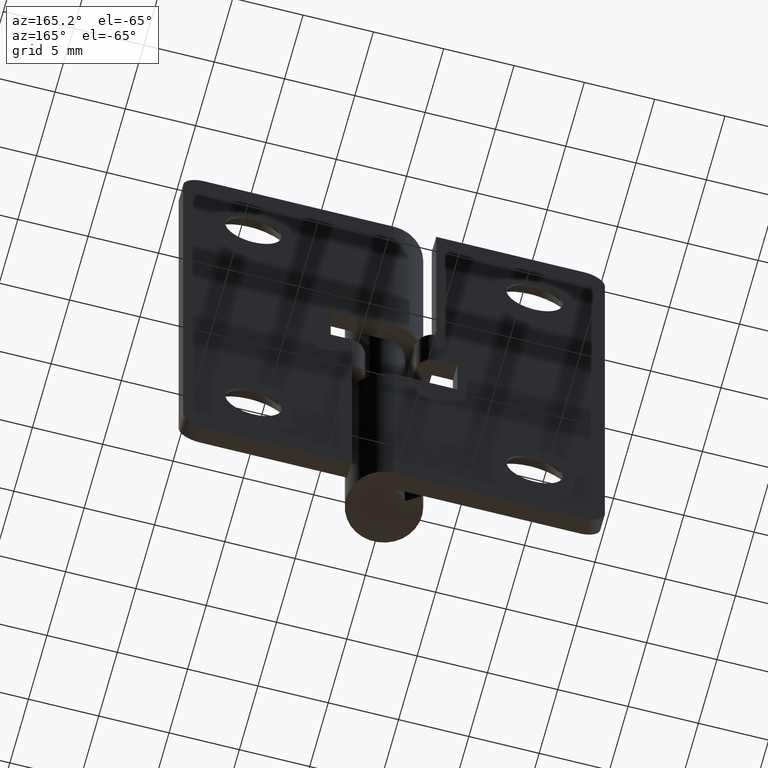
[diagram: clean part render]
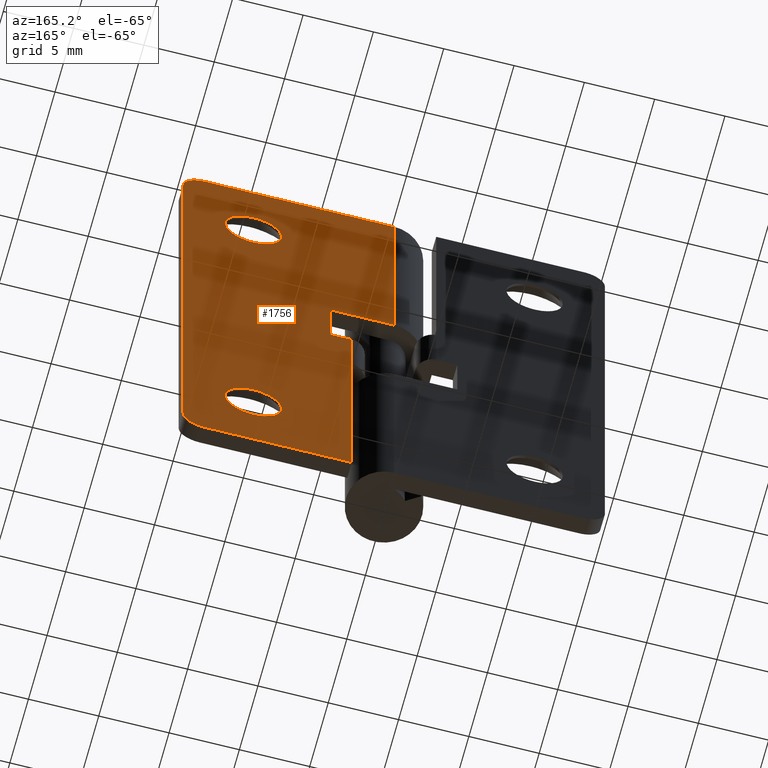
[diagram: same view with one face highlighted and labeled with its STEP entity id]
A machine part, auxiliary view. The second image highlights one B-rep face of the part: STEP entity #1756.
In plain terms, the highlighted face is a freeform B-spline surface patch.
Its self-contained STEP definition (entity closure, byte-faithful):
#472=CARTESIAN_POINT('',(11.986938377345840,2.699997000000000,33.771783587580430));
#473=VERTEX_POINT('',#472);
#479=CARTESIAN_POINT('',(10.0,2.699997000000000,31.999984999999999));
#480=VERTEX_POINT('',#479);
#481=CARTESIAN_POINT('',(11.986938377345840,2.699997000000000,33.771783587580430));
#482=CARTESIAN_POINT('',(11.783445861569737,2.699997000000001,31.999984999999999));
#483=CARTESIAN_POINT('',(10.0,2.699997000000000,31.999984999999999));
#491=(BOUNDED_CURVE()B_SPLINE_CURVE(2,(#481,#482,#483),.UNSPECIFIED.,.F.,.U.)B_SPLINE_CURVE_WITH_KNOTS((3,3),(0.269767770005125,0.500000000000000),.UNSPECIFIED.)CURVE()GEOMETRIC_REPRESENTATION_ITEM()RATIONAL_B_SPLINE_CURVE((0.957343708590814,0.730266164328808,1.0))REPRESENTATION_ITEM(''));
#492=EDGE_CURVE('',#473,#480,#491,.T.);
#494=CARTESIAN_POINT('',(8.003730403179752,2.699997000000000,33.877887920546293));
#495=VERTEX_POINT('',#494);
#496=CARTESIAN_POINT('',(10.0,2.699997000000000,31.999984999999999));
#497=CARTESIAN_POINT('',(8.118587866913771,2.699997000000000,31.999985000000009));
#498=CARTESIAN_POINT('',(8.003730403179752,2.699997000000000,33.877887920546293));
#506=(BOUNDED_CURVE()B_SPLINE_CURVE(2,(#496,#497,#498),.UNSPECIFIED.,.F.,.U.)B_SPLINE_CURVE_WITH_KNOTS((3,3),(0.500000000000000,0.739332962175587),.UNSPECIFIED.)CURVE()GEOMETRIC_REPRESENTATION_ITEM()RATIONAL_B_SPLINE_CURVE((1.0,0.719603993360936,0.976072041530934))REPRESENTATION_ITEM(''));
#507=EDGE_CURVE('',#480,#495,#506,.T.);
#602=CARTESIAN_POINT('',(10.0,2.699997000000000,35.999985000000002));
#603=VERTEX_POINT('',#602);
#604=CARTESIAN_POINT('',(8.003730403179752,2.699997000000000,33.877887920546293));
#605=CARTESIAN_POINT('',(8.0,2.699997000000001,33.938879473017749));
#606=CARTESIAN_POINT('',(8.0,2.699997000000000,33.999985000000002));
#607=CARTESIAN_POINT('',(8.0,2.699997000000000,35.999985000000009));
#608=CARTESIAN_POINT('',(10.0,2.699997000000000,35.999985000000002));
#616=(BOUNDED_CURVE()B_SPLINE_CURVE(2,(#604,#605,#606,#607,#608),.UNSPECIFIED.,.F.,.U.)B_SPLINE_CURVE_WITH_KNOTS((3,2,3),(0.739332962175587,0.750000000000000,1.0),.UNSPECIFIED.)CURVE()GEOMETRIC_REPRESENTATION_ITEM()RATIONAL_B_SPLINE_CURVE((0.976072041530934,0.987502787825611,1.0,0.707106781186548,1.0))REPRESENTATION_ITEM(''));
#617=EDGE_CURVE('',#495,#603,#616,.T.);
#619=CARTESIAN_POINT('',(10.0,2.699997000000000,35.999985000000002));
#620=CARTESIAN_POINT('',(12.0,2.699997000000000,35.999985000000009));
#621=CARTESIAN_POINT('',(12.0,2.699997000000000,33.999985000000002));
#622=CARTESIAN_POINT('',(12.000000000000002,2.699997000000001,33.885510446191844));
#623=CARTESIAN_POINT('',(11.986938377345840,2.699997000000000,33.771783587580430));
#631=(BOUNDED_CURVE()B_SPLINE_CURVE(2,(#619,#620,#621,#622,#623),.UNSPECIFIED.,.F.,.U.)B_SPLINE_CURVE_WITH_KNOTS((3,2,3),(0.0,0.250000000000000,0.269767770005125),.UNSPECIFIED.)CURVE()GEOMETRIC_REPRESENTATION_ITEM()RATIONAL_B_SPLINE_CURVE((1.0,0.707106781186548,1.0,0.976840616857740,0.957343708590814))REPRESENTATION_ITEM(''));
#632=EDGE_CURVE('',#603,#473,#631,.T.);
#800=CARTESIAN_POINT('',(11.986938377345840,2.699997000000000,5.771791587580220));
#801=VERTEX_POINT('',#800);
#807=CARTESIAN_POINT('',(10.0,2.699997000000000,3.999992999999790));
#808=VERTEX_POINT('',#807);
#809=CARTESIAN_POINT('',(11.986938377345833,2.699997000000000,5.771791587580220));
#810=CARTESIAN_POINT('',(11.783445861569746,2.699996999999999,3.999992999999790));
#811=CARTESIAN_POINT('',(10.0,2.699997000000000,3.999992999999790));
#819=(BOUNDED_CURVE()B_SPLINE_CURVE(2,(#809,#810,#811),.UNSPECIFIED.,.F.,.U.)B_SPLINE_CURVE_WITH_KNOTS((3,3),(0.269767770005124,0.500000000000000),.UNSPECIFIED.)CURVE()GEOMETRIC_REPRESENTATION_ITEM()RATIONAL_B_SPLINE_CURVE((0.957343708590815,0.730266164328807,1.0))REPRESENTATION_ITEM(''));
#820=EDGE_CURVE('',#801,#808,#819,.T.);
#822=CARTESIAN_POINT('',(8.003730403179752,2.699997000000000,5.877895920546076));
#823=VERTEX_POINT('',#822);
#824=CARTESIAN_POINT('',(10.0,2.699997000000000,3.999992999999790));
#825=CARTESIAN_POINT('',(8.118587866913771,2.699997000000000,3.999992999999790));
#826=CARTESIAN_POINT('',(8.003730403179752,2.699997000000001,5.877895920546076));
#834=(BOUNDED_CURVE()B_SPLINE_CURVE(2,(#824,#825,#826),.UNSPECIFIED.,.F.,.U.)B_SPLINE_CURVE_WITH_KNOTS((3,3),(0.500000000000000,0.739332962175587),.UNSPECIFIED.)CURVE()GEOMETRIC_REPRESENTATION_ITEM()RATIONAL_B_SPLINE_CURVE((1.0,0.719603993360936,0.976072041530934))REPRESENTATION_ITEM(''));
#835=EDGE_CURVE('',#808,#823,#834,.T.);
#930=CARTESIAN_POINT('',(10.0,2.699997000000000,7.999992999999790));
#931=VERTEX_POINT('',#930);
#932=CARTESIAN_POINT('',(8.003730403179752,2.699997000000000,5.877895920546076));
#933=CARTESIAN_POINT('',(8.0,2.699997000000000,5.938887473017534));
#934=CARTESIAN_POINT('',(8.0,2.699997000000000,5.999992999999790));
#935=CARTESIAN_POINT('',(8.0,2.699997000000000,7.999992999999791));
#936=CARTESIAN_POINT('',(10.0,2.699997000000000,7.999992999999790));
#944=(BOUNDED_CURVE()B_SPLINE_CURVE(2,(#932,#933,#934,#935,#936),.UNSPECIFIED.,.F.,.U.)B_SPLINE_CURVE_WITH_KNOTS((3,2,3),(0.739332962175586,0.750000000000000,1.0),.UNSPECIFIED.)CURVE()GEOMETRIC_REPRESENTATION_ITEM()RATIONAL_B_SPLINE_CURVE((0.976072041530933,0.987502787825611,1.0,0.707106781186548,1.0))REPRESENTATION_ITEM(''));
#945=EDGE_CURVE('',#823,#931,#944,.T.);
#947=CARTESIAN_POINT('',(10.0,2.699997000000000,7.999992999999790));
#948=CARTESIAN_POINT('',(12.0,2.699997000000000,7.999992999999791));
#949=CARTESIAN_POINT('',(12.0,2.699997000000000,5.999992999999790));
#950=CARTESIAN_POINT('',(12.000000000000002,2.699997000000001,5.885518446191634));
#951=CARTESIAN_POINT('',(11.986938377345835,2.699997000000001,5.771791587580220));
#959=(BOUNDED_CURVE()B_SPLINE_CURVE(2,(#947,#948,#949,#950,#951),.UNSPECIFIED.,.F.,.U.)B_SPLINE_CURVE_WITH_KNOTS((3,2,3),(0.0,0.250000000000000,0.269767770005124),.UNSPECIFIED.)CURVE()GEOMETRIC_REPRESENTATION_ITEM()RATIONAL_B_SPLINE_CURVE((1.0,0.707106781186548,1.0,0.976840616857741,0.957343708590815))REPRESENTATION_ITEM(''));
#960=EDGE_CURVE('',#931,#801,#959,.T.);
#1107=CARTESIAN_POINT('',(3.000003000000000,2.699997000000000,19.999962000000000));
#1108=VERTEX_POINT('',#1107);
#1124=CARTESIAN_POINT('',(3.0,2.699997000000000,16.0));
#1125=VERTEX_POINT('',#1124);
#1126=CARTESIAN_POINT('',(3.0,2.699997000000000,16.0));
#1127=CARTESIAN_POINT('',(3.000003000000000,2.699997000000000,19.999962000000000));
#1128=QUASI_UNIFORM_CURVE('',1,(#1126,#1127),.UNSPECIFIED.,.F.,.U.);
#1129=EDGE_CURVE('',#1125,#1108,#1128,.T.);
#1260=CARTESIAN_POINT('',(0.004024921167902,2.699997000000000,23.999962000000000));
#1261=VERTEX_POINT('',#1260);
#1269=CARTESIAN_POINT('',(4.499992000000001,2.699997000000000,23.999962000000000));
#1270=VERTEX_POINT('',#1269);
#1271=CARTESIAN_POINT('',(4.499992000000001,2.699997000000000,23.999962000000000));
#1272=CARTESIAN_POINT('',(0.004024921167902,2.699997000000000,23.999962000000000));
#1273=QUASI_UNIFORM_CURVE('',1,(#1271,#1272),.UNSPECIFIED.,.F.,.U.);
#1274=EDGE_CURVE('',#1270,#1261,#1273,.T.);
#1346=CARTESIAN_POINT('',(4.499992000000001,2.699997000000000,19.999962000000000));
#1347=VERTEX_POINT('',#1346);
#1348=CARTESIAN_POINT('',(4.499992000000001,2.699997000000000,19.999962000000000));
#1349=CARTESIAN_POINT('',(4.499992000000001,2.699997000000000,23.999962000000000));
#1350=QUASI_UNIFORM_CURVE('',1,(#1348,#1349),.UNSPECIFIED.,.F.,.U.);
#1351=EDGE_CURVE('',#1347,#1270,#1350,.T.);
#1373=CARTESIAN_POINT('',(3.000003000000000,2.699997000000000,19.999962000000000));
#1374=CARTESIAN_POINT('',(4.499992000000001,2.699997000000000,19.999962000000000));
#1375=QUASI_UNIFORM_CURVE('',1,(#1373,#1374),.UNSPECIFIED.,.F.,.U.);
#1376=EDGE_CURVE('',#1108,#1347,#1375,.T.);
#1424=CARTESIAN_POINT('',(14.999993000000000,2.699997000000110,38.499953999999953));
#1425=VERTEX_POINT('',#1424);
#1431=CARTESIAN_POINT('',(13.499993000000000,2.699997000000110,39.999954000000002));
#1432=VERTEX_POINT('',#1431);
#1433=CARTESIAN_POINT('',(13.499993000000000,2.699997000000110,39.999954000000002));
#1434=CARTESIAN_POINT('',(14.121313343559658,2.699997000000109,39.999954000000002));
#1435=CARTESIAN_POINT('',(14.560653171779840,2.699997000000110,39.560614171779797));
#1436=CARTESIAN_POINT('',(14.999993000000002,2.699997000000109,39.121274343559634));
#1437=CARTESIAN_POINT('',(14.999993000000000,2.699997000000110,38.499954000000002));
#1445=(BOUNDED_CURVE()B_SPLINE_CURVE(2,(#1433,#1434,#1435,#1436,#1437),.UNSPECIFIED.,.F.,.U.)B_SPLINE_CURVE_WITH_KNOTS((3,2,3),(0.0,0.500000000000000,1.0),.UNSPECIFIED.)CURVE()GEOMETRIC_REPRESENTATION_ITEM()RATIONAL_B_SPLINE_CURVE((1.0,0.923879532511284,1.0,0.923879532511284,1.0))REPRESENTATION_ITEM(''));
#1446=EDGE_CURVE('',#1432,#1425,#1445,.T.);
#1487=CARTESIAN_POINT('',(13.499993000000000,2.699997000000110,-0.000038000000001));
#1488=VERTEX_POINT('',#1487);
#1494=CARTESIAN_POINT('',(14.999993000000000,2.699997000000110,1.499962000000020));
#1495=VERTEX_POINT('',#1494);
#1496=CARTESIAN_POINT('',(14.999993000000000,2.699997000000110,1.499962000000020));
#1497=CARTESIAN_POINT('',(14.999992999999991,2.699997000000111,-0.000037999999980));
#1498=CARTESIAN_POINT('',(13.499993000000000,2.699997000000110,-0.000037999999980));
#1506=(BOUNDED_CURVE()B_SPLINE_CURVE(2,(#1496,#1497,#1498),.UNSPECIFIED.,.F.,.U.)CURVE()GEOMETRIC_REPRESENTATION_ITEM()QUASI_UNIFORM_CURVE()RATIONAL_B_SPLINE_CURVE((1.0,0.707106781186548,1.0))REPRESENTATION_ITEM(''));
#1507=EDGE_CURVE('',#1495,#1488,#1506,.T.);
#1530=CARTESIAN_POINT('',(0.004024921167902,2.699997000000110,39.999954000000002));
#1531=VERTEX_POINT('',#1530);
#1532=CARTESIAN_POINT('',(13.499993000000000,2.699997000000110,39.999954000000002));
#1533=CARTESIAN_POINT('',(0.004024921167902,2.699997000000110,39.999954000000002));
#1534=QUASI_UNIFORM_CURVE('',1,(#1532,#1533),.UNSPECIFIED.,.F.,.U.);
#1535=EDGE_CURVE('',#1432,#1531,#1534,.T.);
#1598=CARTESIAN_POINT('',(14.999993000000000,2.699997000000110,1.499962000000020));
#1599=CARTESIAN_POINT('',(14.999993000000000,2.699997000000110,38.499953999999953));
#1600=QUASI_UNIFORM_CURVE('',1,(#1598,#1599),.UNSPECIFIED.,.F.,.U.);
#1601=EDGE_CURVE('',#1495,#1425,#1600,.T.);
#1612=CARTESIAN_POINT('',(3.0,2.699997000000110,-0.000038000000001));
#1613=VERTEX_POINT('',#1612);
#1621=CARTESIAN_POINT('',(13.499993000000000,2.699997000000110,-0.000038000000001));
#1622=CARTESIAN_POINT('',(3.0,2.699997000000110,-0.000038000000001));
#1623=QUASI_UNIFORM_CURVE('',1,(#1621,#1622),.UNSPECIFIED.,.F.,.U.);
#1624=EDGE_CURVE('',#1488,#1613,#1623,.T.);
#1710=CARTESIAN_POINT('',(0.004024921167902,2.699997000000000,23.999962000000000));
#1711=CARTESIAN_POINT('',(0.004024921167902,2.699997000000110,39.999954000000002));
#1712=QUASI_UNIFORM_CURVE('',1,(#1710,#1711),.UNSPECIFIED.,.F.,.U.);
#1713=EDGE_CURVE('',#1261,#1531,#1712,.T.);
#1722=CARTESIAN_POINT('',(-0.745023655304664,2.699997000000110,-1.998037522872252));
#1723=CARTESIAN_POINT('',(-0.745023655304664,2.699997000000110,41.997954595755651));
#1724=CARTESIAN_POINT('',(15.749041978695780,2.699997000000110,-1.998037522872252));
#1725=CARTESIAN_POINT('',(15.749041978695780,2.699997000000110,41.997954595755651));
#1726=B_SPLINE_SURFACE_WITH_KNOTS('',1,1,((#1722,#1724),(#1723,#1725)),.UNSPECIFIED.,.F.,.F.,.U.,(2,2),(2,2),(0.0,43.995992118627903),(0.0,16.494065634000439),.UNSPECIFIED.);
#1727=CARTESIAN_POINT('',(3.0,2.699997000000110,-0.000038000000001));
#1728=CARTESIAN_POINT('',(3.0,2.699997000000000,16.0));
#1729=QUASI_UNIFORM_CURVE('',1,(#1727,#1728),.UNSPECIFIED.,.F.,.U.);
#1730=EDGE_CURVE('',#1613,#1125,#1729,.T.);
#1731=ORIENTED_EDGE('',*,*,#1730,.T.);
#1732=ORIENTED_EDGE('',*,*,#1129,.T.);
#1733=ORIENTED_EDGE('',*,*,#1376,.T.);
#1734=ORIENTED_EDGE('',*,*,#1351,.T.);
#1735=ORIENTED_EDGE('',*,*,#1274,.T.);
#1736=ORIENTED_EDGE('',*,*,#1713,.T.);
#1737=ORIENTED_EDGE('',*,*,#1535,.F.);
#1738=ORIENTED_EDGE('',*,*,#1446,.T.);
#1739=ORIENTED_EDGE('',*,*,#1601,.F.);
#1740=ORIENTED_EDGE('',*,*,#1507,.T.);
#1741=ORIENTED_EDGE('',*,*,#1624,.T.);
#1742=EDGE_LOOP('',(#1731,#1732,#1733,#1734,#1735,#1736,#1737,#1738,#1739,#1740,#1741));
#1743=FACE_OUTER_BOUND('',#1742,.T.);
#1744=ORIENTED_EDGE('',*,*,#835,.F.);
#1745=ORIENTED_EDGE('',*,*,#820,.F.);
#1746=ORIENTED_EDGE('',*,*,#960,.F.);
#1747=ORIENTED_EDGE('',*,*,#945,.F.);
#1748=EDGE_LOOP('',(#1744,#1745,#1746,#1747));
#1749=FACE_BOUND('',#1748,.T.);
#1750=ORIENTED_EDGE('',*,*,#507,.F.);
#1751=ORIENTED_EDGE('',*,*,#492,.F.);
#1752=ORIENTED_EDGE('',*,*,#632,.F.);
#1753=ORIENTED_EDGE('',*,*,#617,.F.);
#1754=EDGE_LOOP('',(#1750,#1751,#1752,#1753));
#1755=FACE_BOUND('',#1754,.T.);
#1756=ADVANCED_FACE('',(#1743,#1749,#1755),#1726,.T.);